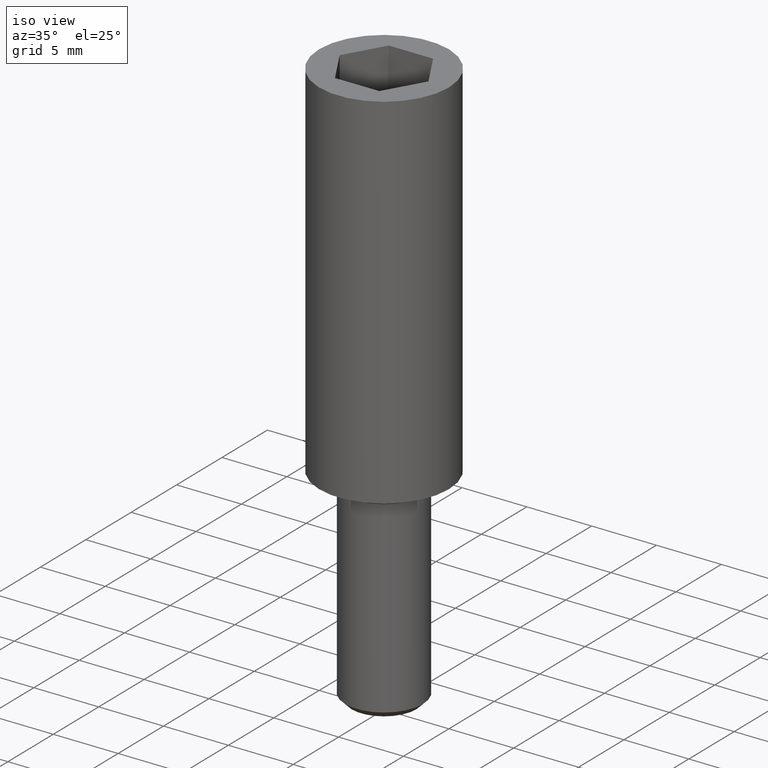
[diagram: clean part render]
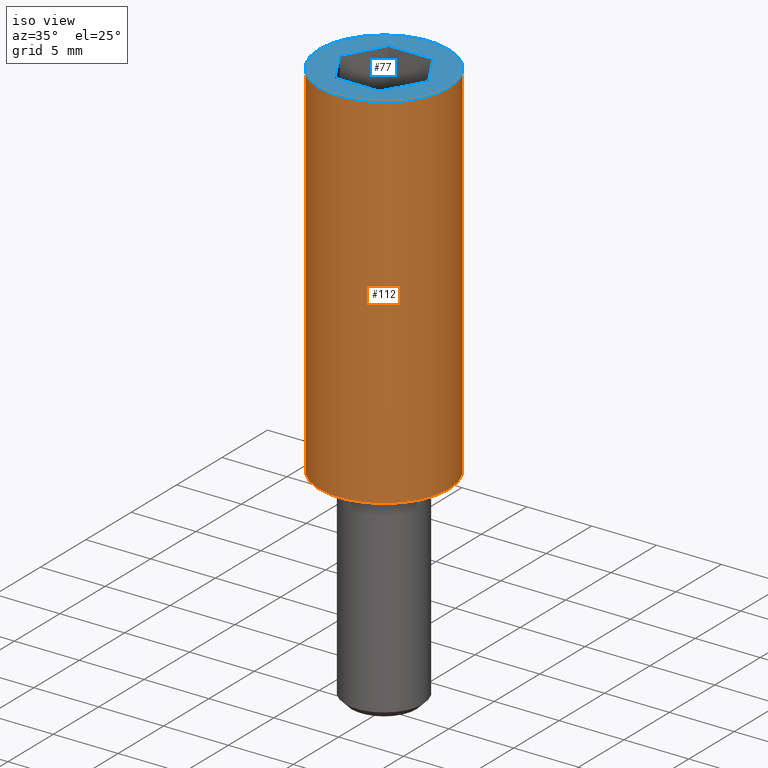
[diagram: same view with the hole feature highlighted: cylindrical wall and planar end face, labeled with their STEP entity ids]
A machine part, iso view. The highlighted faces form one hole feature of diameter 10 mm: the cylindrical wall (entity #112, orange) and its adjacent planar end face (entity #77, blue) — they share a circular edge in the B-rep.
Wall:
#7=CARTESIAN_POINT('',(5.0,0.0,27.999999999999886));
#8=VERTEX_POINT('',#7);
#9=CARTESIAN_POINT('',(-5.0,0.0,27.999999999999886));
#10=VERTEX_POINT('',#9);
#11=CARTESIAN_POINT('',(0.0,0.0,27.999999999999886));
#12=DIRECTION('',(0.0,-6.123234E-017,-1.0));
#13=DIRECTION('',(-1.0,0.0,0.0));
#14=AXIS2_PLACEMENT_3D('',#11,#12,#13);
#15=CIRCLE('',#14,5.0);
#16=EDGE_CURVE('',#8,#10,#15,.T.);
#18=CARTESIAN_POINT('',(0.0,0.0,27.999999999999886));
#19=DIRECTION('',(0.0,-6.123234E-017,-1.0));
#20=DIRECTION('',(-1.0,0.0,0.0));
#21=AXIS2_PLACEMENT_3D('',#18,#19,#20);
#22=CIRCLE('',#21,5.0);
#23=EDGE_CURVE('',#10,#8,#22,.T.);
#78=CARTESIAN_POINT('',(0.0,0.0,27.999999999999886));
#79=DIRECTION('',(0.0,-6.123234E-017,-1.0));
#80=DIRECTION('',(-1.0,0.0,0.0));
#81=AXIS2_PLACEMENT_3D('',#78,#79,#80);
#82=CYLINDRICAL_SURFACE('',#81,5.0);
#83=ORIENTED_EDGE('',*,*,#23,.T.);
#84=ORIENTED_EDGE('',*,*,#16,.T.);
#85=CARTESIAN_POINT('',(-5.0,0.0,0.0));
#86=VERTEX_POINT('',#85);
#87=CARTESIAN_POINT('',(-5.0,1.714506E-015,27.999999999999886));
#88=DIRECTION('',(0.0,0.0,-1.0));
#89=VECTOR('',#88,27.999999999999886);
#90=LINE('',#87,#89);
#91=EDGE_CURVE('',#10,#86,#90,.T.);
#92=ORIENTED_EDGE('',*,*,#91,.T.);
#93=CARTESIAN_POINT('',(5.0,0.0,0.0));
#94=VERTEX_POINT('',#93);
#95=CARTESIAN_POINT('',(0.0,0.0,0.0));
#96=DIRECTION('',(0.0,-6.123234E-017,-1.0));
#97=DIRECTION('',(-1.0,0.0,0.0));
#98=AXIS2_PLACEMENT_3D('',#95,#96,#97);
#99=CIRCLE('',#98,5.0);
#100=EDGE_CURVE('',#94,#86,#99,.T.);
#101=ORIENTED_EDGE('',*,*,#100,.F.);
#102=CARTESIAN_POINT('',(0.0,0.0,0.0));
#103=DIRECTION('',(0.0,-6.123234E-017,-1.0));
#104=DIRECTION('',(-1.0,0.0,0.0));
#105=AXIS2_PLACEMENT_3D('',#102,#103,#104);
#106=CIRCLE('',#105,5.0);
#107=EDGE_CURVE('',#86,#94,#106,.T.);
#108=ORIENTED_EDGE('',*,*,#107,.F.);
#109=ORIENTED_EDGE('',*,*,#91,.F.);
#110=EDGE_LOOP('',(#83,#84,#92,#101,#108,#109));
#111=FACE_OUTER_BOUND('',#110,.T.);
#112=ADVANCED_FACE('',(#111),#82,.T.);
End face:
#2=CARTESIAN_POINT('',(10.0,-10.0,27.999999999999886));
#3=DIRECTION('',(0.0,0.0,1.0));
#4=DIRECTION('',(0.0,1.0,0.0));
#5=AXIS2_PLACEMENT_3D('',#2,#3,#4);
#6=PLANE('',#5);
#7=CARTESIAN_POINT('',(5.0,0.0,27.999999999999886));
#8=VERTEX_POINT('',#7);
#9=CARTESIAN_POINT('',(-5.0,0.0,27.999999999999886));
#10=VERTEX_POINT('',#9);
#11=CARTESIAN_POINT('',(0.0,0.0,27.999999999999886));
#12=DIRECTION('',(0.0,-6.123234E-017,-1.0));
#13=DIRECTION('',(-1.0,0.0,0.0));
#14=AXIS2_PLACEMENT_3D('',#11,#12,#13);
#15=CIRCLE('',#14,5.0);
#16=EDGE_CURVE('',#8,#10,#15,.T.);
#17=ORIENTED_EDGE('',*,*,#16,.F.);
#18=CARTESIAN_POINT('',(0.0,0.0,27.999999999999886));
#19=DIRECTION('',(0.0,-6.123234E-017,-1.0));
#20=DIRECTION('',(-1.0,0.0,0.0));
#21=AXIS2_PLACEMENT_3D('',#18,#19,#20);
#22=CIRCLE('',#21,5.0);
#23=EDGE_CURVE('',#10,#8,#22,.T.);
#24=ORIENTED_EDGE('',*,*,#23,.F.);
#25=EDGE_LOOP('',(#17,#24));
#26=FACE_OUTER_BOUND('',#25,.T.);
#27=CARTESIAN_POINT('',(3.421172276945413,0.0,27.999999999999773));
#28=VERTEX_POINT('',#27);
#29=CARTESIAN_POINT('',(1.710586138472991,2.962822102557766,27.999999999999773));
#30=VERTEX_POINT('',#29);
#31=CARTESIAN_POINT('',(3.421172276945413,0.0,27.999999999999773));
#32=DIRECTION('',(-0.499999999999939,0.866025403784474,0.0));
#33=VECTOR('',#32,3.421172276945260);
#34=LINE('',#31,#33);
#35=EDGE_CURVE('',#28,#30,#34,.T.);
#36=ORIENTED_EDGE('',*,*,#35,.F.);
#37=CARTESIAN_POINT('',(1.710586138472991,-2.962822102557823,27.999999999999773));
#38=VERTEX_POINT('',#37);
#39=CARTESIAN_POINT('',(1.710586138472990,-2.962822102557823,27.999999999999773));
#40=DIRECTION('',(0.499999999999932,0.866025403784478,0.0));
#41=VECTOR('',#40,3.421172276945309);
#42=LINE('',#39,#41);
#43=EDGE_CURVE('',#38,#28,#42,.T.);
#44=ORIENTED_EDGE('',*,*,#43,.F.);
#45=CARTESIAN_POINT('',(-1.710586138472536,-2.962822102557823,27.999999999999773));
#46=VERTEX_POINT('',#45);
#47=CARTESIAN_POINT('',(-1.710586138472536,-2.962822102557823,27.999999999999773));
#48=DIRECTION('',(1.0,0.0,0.0));
#49=VECTOR('',#48,3.421172276945526);
#50=LINE('',#47,#49);
#51=EDGE_CURVE('',#46,#38,#50,.T.);
#52=ORIENTED_EDGE('',*,*,#51,.F.);
#53=CARTESIAN_POINT('',(-3.421172276945640,0.0,27.999999999999773));
#54=VERTEX_POINT('',#53);
#55=CARTESIAN_POINT('',(-3.421172276945641,0.0,27.999999999999773));
#56=DIRECTION('',(0.500000000000082,-0.866025403784391,0.0));
#57=VECTOR('',#56,3.421172276945650);
#58=LINE('',#55,#57);
#59=EDGE_CURVE('',#54,#46,#58,.T.);
#60=ORIENTED_EDGE('',*,*,#59,.F.);
#61=CARTESIAN_POINT('',(-1.710586138472536,2.962822102557766,27.999999999999773));
#62=VERTEX_POINT('',#61);
#63=CARTESIAN_POINT('',(-1.710586138472535,2.962822102557766,27.999999999999773));
#64=DIRECTION('',(-0.500000000000089,-0.866025403784387,0.0));
#65=VECTOR('',#64,3.421172276945601);
#66=LINE('',#63,#65);
#67=EDGE_CURVE('',#62,#54,#66,.T.);
#68=ORIENTED_EDGE('',*,*,#67,.F.);
#69=CARTESIAN_POINT('',(1.710586138472991,2.962822102557766,27.999999999999773));
#70=DIRECTION('',(-1.0,0.0,0.0));
#71=VECTOR('',#70,3.421172276945526);
#72=LINE('',#69,#71);
#73=EDGE_CURVE('',#30,#62,#72,.T.);
#74=ORIENTED_EDGE('',*,*,#73,.F.);
#75=EDGE_LOOP('',(#36,#44,#52,#60,#68,#74));
#76=FACE_BOUND('',#75,.T.);
#77=ADVANCED_FACE('',(#26,#76),#6,.T.);